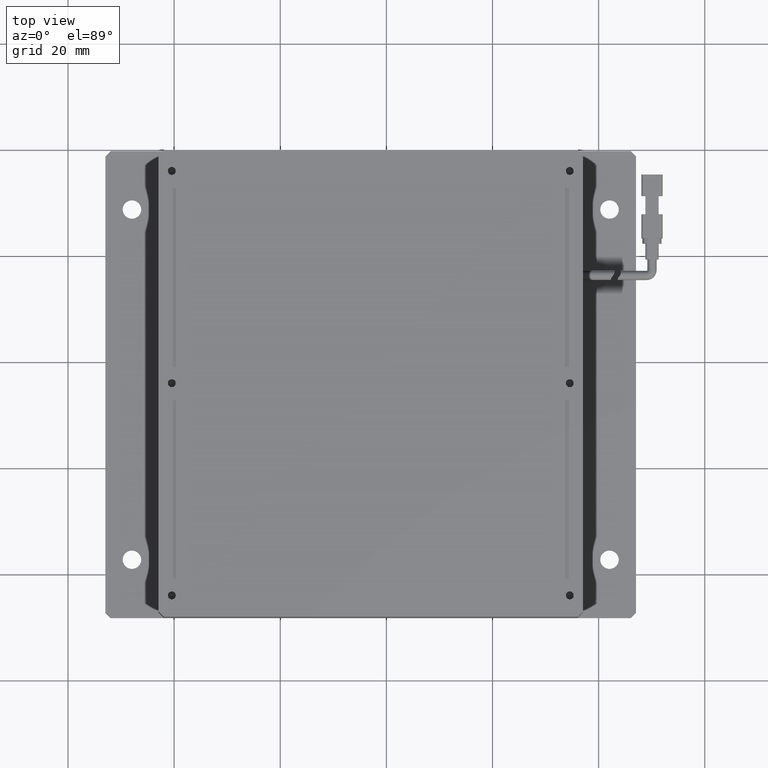
[diagram: clean part render]
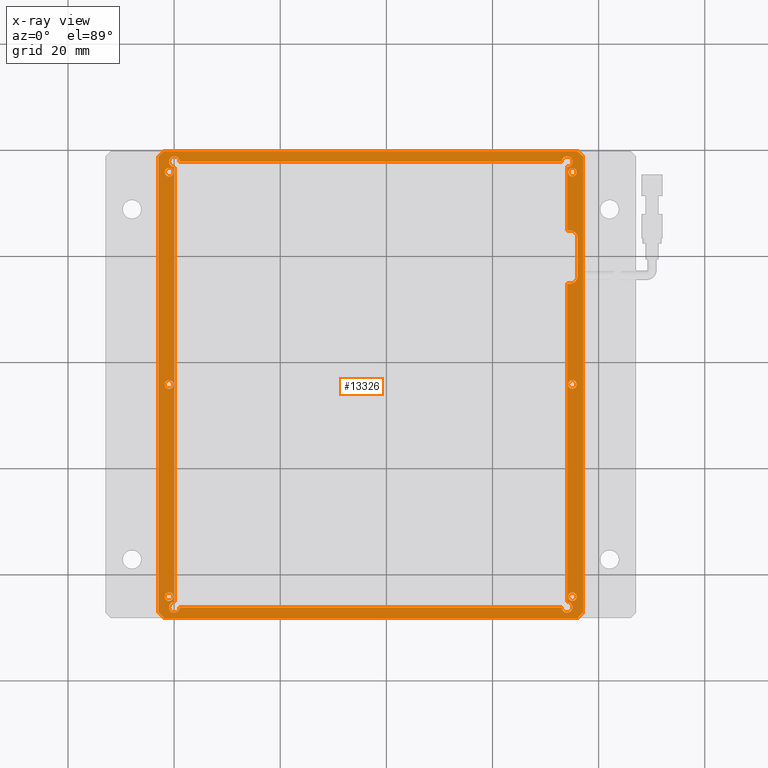
[diagram: x-ray — body ghosted, one internal face saturated and labeled with its STEP entity id]
A machine part, top view, then the same camera in x-ray: the body is ghosted and one INTERNAL B-rep face — a face not visible from any outside direction — is saturated and labeled: STEP entity #13326.
In plain terms, the highlighted planar face has unit normal (0, 0, -1).
Its self-contained STEP definition (entity closure, byte-faithful):
#15 = DIRECTION ( 'NONE',  ( 1.000000000000000000, 0.0000000000000000000, 0.0000000000000000000 ) ) ;
#82 = CARTESIAN_POINT ( 'NONE',  ( 55.85231004200074500, -44.20007636502477800, -4.547577592273199800E-012 ) ) ;
#92 = LINE ( 'NONE', #15072, #3356 ) ;
#102 = ORIENTED_EDGE ( 'NONE', *, *, #7339, .T. ) ;
#191 = DIRECTION ( 'NONE',  ( 0.0000000000000000000, 0.0000000000000000000, 1.000000000000000000 ) ) ;
#221 = CARTESIAN_POINT ( 'NONE',  ( 57.05231004200075500, -47.20007636502479200, -4.547577592273199800E-012 ) ) ;
#239 = CIRCLE ( 'NONE', #10890, 0.9999999999999974500 ) ;
#246 = DIRECTION ( 'NONE',  ( 1.000000000000000000, 0.0000000000000000000, 0.0000000000000000000 ) ) ;
#272 = DIRECTION ( 'NONE',  ( 0.0000000000000000000, 0.0000000000000000000, 1.000000000000000000 ) ) ;
#308 = VERTEX_POINT ( 'NONE', #10811 ) ;
#317 = CARTESIAN_POINT ( 'NONE',  ( 55.85231004200074500, -4.200076365024778500, -4.547577592273199800E-012 ) ) ;
#401 = CARTESIAN_POINT ( 'NONE',  ( -19.94768995799928700, 37.79992363497522900, -4.547577592273199800E-012 ) ) ;
#457 = VERTEX_POINT ( 'NONE', #2588 ) ;
#513 = VECTOR ( 'NONE', #16598, 1000.000000000000000 ) ;
#595 = DIRECTION ( 'NONE',  ( -1.000000000000000000, 0.0000000000000000000, -0.0000000000000000000 ) ) ;
#605 = LINE ( 'NONE', #2261, #4331 ) ;
#650 = VERTEX_POINT ( 'NONE', #12673 ) ;
#719 = CARTESIAN_POINT ( 'NONE',  ( -20.94768995799924800, -44.20007636502477800, -4.547577592273199800E-012 ) ) ;
#918 = CARTESIAN_POINT ( 'NONE',  ( 56.05231004200073400, -48.20007636502477800, -4.550179677487165000E-012 ) ) ;
#971 = EDGE_CURVE ( 'NONE', #9917, #3368, #3453, .T. ) ;
#1082 = EDGE_CURVE ( 'NONE', #10163, #3170, #8573, .T. ) ;
#1135 = CIRCLE ( 'NONE', #11123, 0.9999999999999974500 ) ;
#1140 = EDGE_CURVE ( 'NONE', #3368, #10163, #17310, .T. ) ;
#1344 = CARTESIAN_POINT ( 'NONE',  ( 54.05231004200079100, 24.79992363497521900, -4.547577592273199800E-012 ) ) ;
#1462 = LINE ( 'NONE', #6962, #15626 ) ;
#1781 = DIRECTION ( 'NONE',  ( -1.000000000000000000, 0.0000000000000000000, 0.0000000000000000000 ) ) ;
#1988 = LINE ( 'NONE', #3212, #5277 ) ;
#2025 = ORIENTED_EDGE ( 'NONE', *, *, #2675, .T. ) ;
#2109 = FACE_OUTER_BOUND ( 'NONE', #14252, .T. ) ;
#2110 = DIRECTION ( 'NONE',  ( -1.000000000000000000, 0.0000000000000000000, 0.0000000000000000000 ) ) ;
#2177 = CARTESIAN_POINT ( 'NONE',  ( -22.94768995799924800, 39.79992363497522200, -4.547577592273199800E-012 ) ) ;
#2210 = CIRCLE ( 'NONE', #8724, 0.7999999999999986000 ) ;
#2240 = CARTESIAN_POINT ( 'NONE',  ( 54.05231004200079100, 37.79992363497522900, -4.547577592273199800E-012 ) ) ;
#2261 = CARTESIAN_POINT ( 'NONE',  ( 54.05231004200079100, 39.79992363497522200, -4.547577592273199800E-012 ) ) ;
#2263 = CIRCLE ( 'NONE', #15906, 0.7999999999999986000 ) ;
#2321 = EDGE_CURVE ( 'NONE', #12883, #308, #605, .T. ) ;
#2356 = EDGE_CURVE ( 'NONE', #308, #12710, #16695, .T. ) ;
#2402 = DIRECTION ( 'NONE',  ( 0.0000000000000000000, 0.0000000000000000000, 1.000000000000000000 ) ) ;
#2492 = CARTESIAN_POINT ( 'NONE',  ( 54.05231004200079100, -46.20007636502478500, -4.547577592273199800E-012 ) ) ;
#2514 = CARTESIAN_POINT ( 'NONE',  ( -20.94768995799924800, 35.79992363497524400, -4.547577592273199800E-012 ) ) ;
#2517 = CARTESIAN_POINT ( 'NONE',  ( 55.05231004200074800, 35.79992363497521500, -4.547577592273199800E-012 ) ) ;
#2588 = CARTESIAN_POINT ( 'NONE',  ( 54.55231004200074800, 14.79992363497521200, -4.547577592273199800E-012 ) ) ;
#2595 = CARTESIAN_POINT ( 'NONE',  ( -20.94768995799924800, -4.200076365024778500, -4.547577592273199800E-012 ) ) ;
#2675 = EDGE_CURVE ( 'NONE', #4005, #8441, #8983, .T. ) ;
#2713 = ORIENTED_EDGE ( 'NONE', *, *, #14520, .T. ) ;
#2813 = VERTEX_POINT ( 'NONE', #82 ) ;
#2952 = EDGE_CURVE ( 'NONE', #3170, #457, #3626, .T. ) ;
#3044 = DIRECTION ( 'NONE',  ( -0.7071067811865474600, 0.7071067811865474600, 0.0000000000000000000 ) ) ;
#3068 = EDGE_CURVE ( 'NONE', #3841, #5826, #13861, .T. ) ;
#3106 = DIRECTION ( 'NONE',  ( 1.000000000000000000, -0.0000000000000000000, 0.0000000000000000000 ) ) ;
#3137 = VECTOR ( 'NONE', #14300, 1000.000000000000000 ) ;
#3139 = EDGE_CURVE ( 'NONE', #8537, #12160, #2263, .T. ) ;
#3170 = VERTEX_POINT ( 'NONE', #16638 ) ;
#3212 = CARTESIAN_POINT ( 'NONE',  ( -19.94768995799928700, 39.79992363497522200, -4.547577592273199800E-012 ) ) ;
#3299 = CARTESIAN_POINT ( 'NONE',  ( -19.94768995799928700, 37.79992363497522900, -4.547577592273199800E-012 ) ) ;
#3356 = VECTOR ( 'NONE', #15, 1000.000000000000000 ) ;
#3368 = VERTEX_POINT ( 'NONE', #9639 ) ;
#3453 = LINE ( 'NONE', #17347, #17543 ) ;
#3497 = CARTESIAN_POINT ( 'NONE',  ( 54.55231004200074800, 24.79992363497521900, -4.547577592273199800E-012 ) ) ;
#3594 = DIRECTION ( 'NONE',  ( -1.000000000000000000, 0.0000000000000000000, -0.0000000000000000000 ) ) ;
#3626 = LINE ( 'NONE', #6644, #17724 ) ;
#3685 = CARTESIAN_POINT ( 'NONE',  ( 57.05231004200074100, -47.20007636502480600, -4.548228113576691100E-012 ) ) ;
#3741 = ORIENTED_EDGE ( 'NONE', *, *, #11895, .T. ) ;
#3795 = DIRECTION ( 'NONE',  ( 0.0000000000000000000, 0.0000000000000000000, 1.000000000000000000 ) ) ;
#3810 = EDGE_LOOP ( 'NONE', ( #11406, #15882 ) ) ;
#3841 = VERTEX_POINT ( 'NONE', #16575 ) ;
#3855 = EDGE_LOOP ( 'NONE', ( #6898, #102, #10466, #16496, #17520, #11645, #6748, #13529, #12828, #5091, #12356, #13732, #14135, #12409, #12993, #14922 ) ) ;
#3919 = EDGE_CURVE ( 'NONE', #6253, #6188, #6823, .T. ) ;
#3921 = AXIS2_PLACEMENT_3D ( 'NONE', #2517, #12105, #3953 ) ;
#3951 = DIRECTION ( 'NONE',  ( -1.000000000000000000, 0.0000000000000000000, 0.0000000000000000000 ) ) ;
#3953 = DIRECTION ( 'NONE',  ( -1.000000000000000000, 0.0000000000000000000, 0.0000000000000000000 ) ) ;
#3954 = ORIENTED_EDGE ( 'NONE', *, *, #13965, .T. ) ;
#4005 = VERTEX_POINT ( 'NONE', #9071 ) ;
#4069 = CARTESIAN_POINT ( 'NONE',  ( -19.94768995799928700, -46.20007636502478500, -4.547577592273199800E-012 ) ) ;
#4154 = EDGE_CURVE ( 'NONE', #6188, #4959, #11692, .T. ) ;
#4213 = CARTESIAN_POINT ( 'NONE',  ( -19.94768995799928700, -45.20007636502478500, -4.547577592273199800E-012 ) ) ;
#4331 = VECTOR ( 'NONE', #10502, 1000.000000000000000 ) ;
#4353 = CARTESIAN_POINT ( 'NONE',  ( -18.94768995799928700, 37.79992363497524400, -4.547577592273199800E-012 ) ) ;
#4367 = ORIENTED_EDGE ( 'NONE', *, *, #10113, .T. ) ;
#4438 = DIRECTION ( 'NONE',  ( 0.0000000000000000000, 0.0000000000000000000, 1.000000000000000000 ) ) ;
#4440 = VECTOR ( 'NONE', #13739, 1000.000000000000100 ) ;
#4625 = CARTESIAN_POINT ( 'NONE',  ( 56.05231004200074800, 39.79992363497522200, -4.547577592273199800E-012 ) ) ;
#4705 = DIRECTION ( 'NONE',  ( -1.000000000000000000, 0.0000000000000000000, 0.0000000000000000000 ) ) ;
#4761 = AXIS2_PLACEMENT_3D ( 'NONE', #15087, #6960, #16468 ) ;
#4792 = VERTEX_POINT ( 'NONE', #3685 ) ;
#4819 = CARTESIAN_POINT ( 'NONE',  ( 55.05231004200074800, -44.20007636502477800, -4.547577592273199800E-012 ) ) ;
#4872 = CARTESIAN_POINT ( 'NONE',  ( -20.94768995799924800, 35.79992363497524400, -4.547577592273199800E-012 ) ) ;
#4921 = DIRECTION ( 'NONE',  ( -1.000000000000000000, 0.0000000000000000000, 0.0000000000000000000 ) ) ;
#4934 = VERTEX_POINT ( 'NONE', #3497 ) ;
#4959 = VERTEX_POINT ( 'NONE', #12711 ) ;
#5091 = ORIENTED_EDGE ( 'NONE', *, *, #15696, .T. ) ;
#5095 = ORIENTED_EDGE ( 'NONE', *, *, #3139, .T. ) ;
#5191 = EDGE_CURVE ( 'NONE', #2813, #16497, #6079, .T. ) ;
#5277 = VECTOR ( 'NONE', #12781, 1000.000000000000000 ) ;
#5375 = DIRECTION ( 'NONE',  ( -0.0000000000000000000, -1.000000000000000000, 0.0000000000000000000 ) ) ;
#5410 = FACE_BOUND ( 'NONE', #3855, .T. ) ;
#5467 = DIRECTION ( 'NONE',  ( -1.000000000000000000, 0.0000000000000000000, 0.0000000000000000000 ) ) ;
#5564 = CIRCLE ( 'NONE', #14674, 0.7999999999999986000 ) ;
#5579 = EDGE_CURVE ( 'NONE', #15515, #10497, #13689, .T. ) ;
#5695 = DIRECTION ( 'NONE',  ( 0.7071067811865474600, -0.7071067811865474600, 0.0000000000000000000 ) ) ;
#5826 = VERTEX_POINT ( 'NONE', #6682 ) ;
#5863 = VERTEX_POINT ( 'NONE', #8144 ) ;
#5918 = DIRECTION ( 'NONE',  ( -1.000000000000000000, 0.0000000000000000000, 0.0000000000000000000 ) ) ;
#5976 = EDGE_LOOP ( 'NONE', ( #5095, #12884 ) ) ;
#6079 = CIRCLE ( 'NONE', #17793, 0.7999999999999951600 ) ;
#6139 = CARTESIAN_POINT ( 'NONE',  ( -20.14768995799924800, 35.79992363497524400, -4.547577592273199800E-012 ) ) ;
#6142 = DIRECTION ( 'NONE',  ( 0.0000000000000000000, 0.0000000000000000000, 1.000000000000000000 ) ) ;
#6144 = CIRCLE ( 'NONE', #4761, 0.7999999999999951600 ) ;
#6188 = VERTEX_POINT ( 'NONE', #8849 ) ;
#6250 = DIRECTION ( 'NONE',  ( -1.000000000000000000, 0.0000000000000000000, 0.0000000000000000000 ) ) ;
#6253 = VERTEX_POINT ( 'NONE', #9060 ) ;
#6258 = CIRCLE ( 'NONE', #17760, 0.7999999999999986000 ) ;
#6267 = CARTESIAN_POINT ( 'NONE',  ( -21.74768995799924600, 35.79992363497524400, -4.547577592273199800E-012 ) ) ;
#6404 = DIRECTION ( 'NONE',  ( 0.0000000000000000000, 0.0000000000000000000, 1.000000000000000000 ) ) ;
#6444 = AXIS2_PLACEMENT_3D ( 'NONE', #2492, #7627, #13341 ) ;
#6456 = AXIS2_PLACEMENT_3D ( 'NONE', #2177, #11775, #3594 ) ;
#6606 = VERTEX_POINT ( 'NONE', #4353 ) ;
#6639 = EDGE_CURVE ( 'NONE', #8837, #6253, #11102, .T. ) ;
#6644 = CARTESIAN_POINT ( 'NONE',  ( 56.05231004200074800, 14.79992363497521200, -4.547577592273199800E-012 ) ) ;
#6682 = CARTESIAN_POINT ( 'NONE',  ( 56.05231004200074800, 23.29992363497523300, -4.547577592273199800E-012 ) ) ;
#6706 = ORIENTED_EDGE ( 'NONE', *, *, #16716, .T. ) ;
#6748 = ORIENTED_EDGE ( 'NONE', *, *, #2952, .T. ) ;
#6768 = CIRCLE ( 'NONE', #14128, 0.7999999999999951600 ) ;
#6823 = LINE ( 'NONE', #11220, #3137 ) ;
#6824 = VECTOR ( 'NONE', #5375, 1000.000000000000000 ) ;
#6898 = ORIENTED_EDGE ( 'NONE', *, *, #12003, .T. ) ;
#6960 = DIRECTION ( 'NONE',  ( 0.0000000000000000000, 0.0000000000000000000, 1.000000000000000000 ) ) ;
#6962 = CARTESIAN_POINT ( 'NONE',  ( 56.05231004200076200, 39.79992363497522200, -4.547577592273199800E-012 ) ) ;
#7097 = VERTEX_POINT ( 'NONE', #918 ) ;
#7170 = CARTESIAN_POINT ( 'NONE',  ( -21.94768995799924800, -48.20007636502477800, -4.547577592273199800E-012 ) ) ;
#7227 = LINE ( 'NONE', #8712, #14457 ) ;
#7314 = ORIENTED_EDGE ( 'NONE', *, *, #5191, .T. ) ;
#7339 = EDGE_CURVE ( 'NONE', #8894, #14900, #1135, .T. ) ;
#7482 = VECTOR ( 'NONE', #3044, 1000.000000000000100 ) ;
#7627 = DIRECTION ( 'NONE',  ( 0.0000000000000000000, 0.0000000000000000000, 1.000000000000000000 ) ) ;
#7709 = AXIS2_PLACEMENT_3D ( 'NONE', #3299, #12868, #4705 ) ;
#7726 = CARTESIAN_POINT ( 'NONE',  ( -20.14768995799924800, -44.20007636502477800, -4.547577592273199800E-012 ) ) ;
#7733 = AXIS2_PLACEMENT_3D ( 'NONE', #10628, #2402, #11996 ) ;
#7783 = DIRECTION ( 'NONE',  ( 0.0000000000000000000, 0.0000000000000000000, 1.000000000000000000 ) ) ;
#7944 = ORIENTED_EDGE ( 'NONE', *, *, #5579, .T. ) ;
#8020 = DIRECTION ( 'NONE',  ( 0.0000000000000000000, 1.000000000000000000, 0.0000000000000000000 ) ) ;
#8096 = ORIENTED_EDGE ( 'NONE', *, *, #16797, .T. ) ;
#8109 = EDGE_CURVE ( 'NONE', #650, #14914, #8784, .T. ) ;
#8144 = CARTESIAN_POINT ( 'NONE',  ( -20.94768995799928700, 37.79992363497522900, -4.547577592273199800E-012 ) ) ;
#8429 = CARTESIAN_POINT ( 'NONE',  ( -22.94768995799924800, 37.79992363497522900, -4.547577592273199800E-012 ) ) ;
#8439 = CARTESIAN_POINT ( 'NONE',  ( -19.94768995799928700, -46.20007636502478500, -4.547577592273199800E-012 ) ) ;
#8441 = VERTEX_POINT ( 'NONE', #317 ) ;
#8497 = DIRECTION ( 'NONE',  ( 0.0000000000000000000, 0.0000000000000000000, 1.000000000000000000 ) ) ;
#8537 = VERTEX_POINT ( 'NONE', #16982 ) ;
#8573 = LINE ( 'NONE', #15767, #8997 ) ;
#8712 = CARTESIAN_POINT ( 'NONE',  ( -22.94768995799924800, -48.20007636502477800, -4.547577592273199800E-012 ) ) ;
#8724 = AXIS2_PLACEMENT_3D ( 'NONE', #2514, #12102, #3951 ) ;
#8784 = CIRCLE ( 'NONE', #3921, 0.7999999999999951600 ) ;
#8837 = VERTEX_POINT ( 'NONE', #10962 ) ;
#8849 = CARTESIAN_POINT ( 'NONE',  ( -22.94768995799925200, 38.79992363497521500, -4.548228113576691100E-012 ) ) ;
#8851 = CARTESIAN_POINT ( 'NONE',  ( -19.94768995799928700, 36.79992363497522900, -4.547577592273199800E-012 ) ) ;
#8893 = AXIS2_PLACEMENT_3D ( 'NONE', #16668, #8497, #246 ) ;
#8894 = VERTEX_POINT ( 'NONE', #4213 ) ;
#8900 = DIRECTION ( 'NONE',  ( -1.000000000000000000, 0.0000000000000000000, 0.0000000000000000000 ) ) ;
#8983 = CIRCLE ( 'NONE', #10525, 0.7999999999999951600 ) ;
#8997 = VECTOR ( 'NONE', #12623, 1000.000000000000000 ) ;
#9005 = FACE_BOUND ( 'NONE', #3810, .T. ) ;
#9047 = EDGE_CURVE ( 'NONE', #9799, #10286, #5564, .T. ) ;
#9060 = CARTESIAN_POINT ( 'NONE',  ( -22.94768995799924500, -47.20007636502478500, -4.550179677487165000E-012 ) ) ;
#9071 = CARTESIAN_POINT ( 'NONE',  ( 54.25231004200075800, -4.200076365024778500, -4.547577592273199800E-012 ) ) ;
#9104 = DIRECTION ( 'NONE',  ( -1.000000000000000000, 0.0000000000000000000, 0.0000000000000000000 ) ) ;
#9192 = CARTESIAN_POINT ( 'NONE',  ( -20.94768995799924800, -44.20007636502477800, -4.547577592273199800E-012 ) ) ;
#9486 = EDGE_LOOP ( 'NONE', ( #9739, #3954 ) ) ;
#9639 = CARTESIAN_POINT ( 'NONE',  ( 53.05231004200079100, -46.20007636502479200, -4.547577592273199800E-012 ) ) ;
#9739 = ORIENTED_EDGE ( 'NONE', *, *, #9047, .T. ) ;
#9774 = CIRCLE ( 'NONE', #13641, 1.500000000000001300 ) ;
#9799 = VERTEX_POINT ( 'NONE', #6267 ) ;
#9817 = DIRECTION ( 'NONE',  ( -1.000000000000000000, 0.0000000000000000000, 0.0000000000000000000 ) ) ;
#9899 = CARTESIAN_POINT ( 'NONE',  ( 55.05231004200074800, -4.200076365024778500, -4.547577592273199800E-012 ) ) ;
#9917 = VERTEX_POINT ( 'NONE', #17500 ) ;
#10018 = DIRECTION ( 'NONE',  ( 0.0000000000000000000, 0.0000000000000000000, 1.000000000000000000 ) ) ;
#10040 = CARTESIAN_POINT ( 'NONE',  ( 54.05231004200079100, -45.20007636502478500, -4.547577592273199800E-012 ) ) ;
#10084 = CARTESIAN_POINT ( 'NONE',  ( 54.25231004200075800, -44.20007636502477800, -4.547577592273199800E-012 ) ) ;
#10113 = EDGE_CURVE ( 'NONE', #16497, #2813, #6768, .T. ) ;
#10138 = LINE ( 'NONE', #221, #13335 ) ;
#10163 = VERTEX_POINT ( 'NONE', #10040 ) ;
#10231 = VERTEX_POINT ( 'NONE', #8851 ) ;
#10237 = VECTOR ( 'NONE', #8020, 1000.000000000000000 ) ;
#10255 = EDGE_CURVE ( 'NONE', #4934, #12883, #11642, .T. ) ;
#10286 = VERTEX_POINT ( 'NONE', #6139 ) ;
#10350 = DIRECTION ( 'NONE',  ( 0.0000000000000000000, 0.0000000000000000000, 1.000000000000000000 ) ) ;
#10466 = ORIENTED_EDGE ( 'NONE', *, *, #17389, .T. ) ;
#10497 = VERTEX_POINT ( 'NONE', #12060 ) ;
#10502 = DIRECTION ( 'NONE',  ( 0.0000000000000000000, 1.000000000000000000, 0.0000000000000000000 ) ) ;
#10525 = AXIS2_PLACEMENT_3D ( 'NONE', #9899, #272, #5918 ) ;
#10628 = CARTESIAN_POINT ( 'NONE',  ( 55.05231004200074800, -4.200076365024778500, -4.547577592273199800E-012 ) ) ;
#10811 = CARTESIAN_POINT ( 'NONE',  ( 54.05231004200079100, 36.79992363497522900, -4.547577592273199800E-012 ) ) ;
#10858 = DIRECTION ( 'NONE',  ( -1.000000000000000000, 0.0000000000000000000, 0.0000000000000000000 ) ) ;
#10890 = AXIS2_PLACEMENT_3D ( 'NONE', #401, #10018, #1781 ) ;
#10962 = CARTESIAN_POINT ( 'NONE',  ( -21.94768995799925200, -48.20007636502477800, -4.548228113576691100E-012 ) ) ;
#11080 = EDGE_CURVE ( 'NONE', #10497, #15515, #17072, .T. ) ;
#11102 = LINE ( 'NONE', #7170, #7482 ) ;
#11123 = AXIS2_PLACEMENT_3D ( 'NONE', #8439, #191, #9817 ) ;
#11200 = AXIS2_PLACEMENT_3D ( 'NONE', #11965, #3795, #13340 ) ;
#11220 = CARTESIAN_POINT ( 'NONE',  ( -22.94768995799924800, -48.20007636502477800, -4.547577592273199800E-012 ) ) ;
#11293 = AXIS2_PLACEMENT_3D ( 'NONE', #2595, #6404, #8900 ) ;
#11376 = CIRCLE ( 'NONE', #16826, 0.9999999999999974500 ) ;
#11406 = ORIENTED_EDGE ( 'NONE', *, *, #14062, .T. ) ;
#11598 = CARTESIAN_POINT ( 'NONE',  ( 57.05231004200075500, 38.79992363497521500, -4.550179677487165000E-012 ) ) ;
#11610 = EDGE_LOOP ( 'NONE', ( #4367, #7314 ) ) ;
#11642 = LINE ( 'NONE', #17015, #15697 ) ;
#11645 = ORIENTED_EDGE ( 'NONE', *, *, #1082, .T. ) ;
#11692 = LINE ( 'NONE', #11829, #4440 ) ;
#11738 = EDGE_CURVE ( 'NONE', #12710, #6606, #14668, .T. ) ;
#11739 = VERTEX_POINT ( 'NONE', #16253 ) ;
#11775 = DIRECTION ( 'NONE',  ( 0.0000000000000000000, 0.0000000000000000000, -1.000000000000000000 ) ) ;
#11796 = CARTESIAN_POINT ( 'NONE',  ( 53.05231004200079100, 37.79992363497522900, -4.547577592273199800E-012 ) ) ;
#11829 = CARTESIAN_POINT ( 'NONE',  ( -22.94768995799925900, 38.79992363497520100, -4.547577592273199800E-012 ) ) ;
#11895 = EDGE_CURVE ( 'NONE', #7097, #8837, #7227, .T. ) ;
#11965 = CARTESIAN_POINT ( 'NONE',  ( -20.94768995799924800, -4.200076365024778500, -4.547577592273199800E-012 ) ) ;
#11996 = DIRECTION ( 'NONE',  ( -1.000000000000000000, 0.0000000000000000000, 0.0000000000000000000 ) ) ;
#12003 = EDGE_CURVE ( 'NONE', #10231, #8894, #1988, .T. ) ;
#12060 = CARTESIAN_POINT ( 'NONE',  ( -21.74768995799924600, -4.200076365024778500, -4.547577592273199800E-012 ) ) ;
#12102 = DIRECTION ( 'NONE',  ( 0.0000000000000000000, 0.0000000000000000000, 1.000000000000000000 ) ) ;
#12105 = DIRECTION ( 'NONE',  ( 0.0000000000000000000, 0.0000000000000000000, 1.000000000000000000 ) ) ;
#12150 = CARTESIAN_POINT ( 'NONE',  ( 57.05231004200075500, -48.20007636502477800, -4.547577592273199800E-012 ) ) ;
#12160 = VERTEX_POINT ( 'NONE', #7726 ) ;
#12184 = ORIENTED_EDGE ( 'NONE', *, *, #3919, .T. ) ;
#12356 = ORIENTED_EDGE ( 'NONE', *, *, #10255, .T. ) ;
#12403 = DIRECTION ( 'NONE',  ( 0.0000000000000000000, 0.0000000000000000000, 1.000000000000000000 ) ) ;
#12409 = ORIENTED_EDGE ( 'NONE', *, *, #11738, .T. ) ;
#12504 = EDGE_CURVE ( 'NONE', #4792, #7097, #10138, .T. ) ;
#12564 = EDGE_CURVE ( 'NONE', #5863, #10231, #239, .T. ) ;
#12615 = CARTESIAN_POINT ( 'NONE',  ( 55.05231004200074800, -44.20007636502477800, -4.547577592273199800E-012 ) ) ;
#12623 = DIRECTION ( 'NONE',  ( 0.0000000000000000000, 1.000000000000000000, 0.0000000000000000000 ) ) ;
#12645 = FACE_BOUND ( 'NONE', #13844, .T. ) ;
#12673 = CARTESIAN_POINT ( 'NONE',  ( 55.85231004200074500, 35.79992363497521500, -4.547577592273199800E-012 ) ) ;
#12684 = ORIENTED_EDGE ( 'NONE', *, *, #17504, .T. ) ;
#12710 = VERTEX_POINT ( 'NONE', #11796 ) ;
#12711 = CARTESIAN_POINT ( 'NONE',  ( -21.94768995799926300, 39.79992363497522200, -4.550179677487165000E-012 ) ) ;
#12732 = DIRECTION ( 'NONE',  ( -1.000000000000000000, -0.0000000000000000000, 0.0000000000000000000 ) ) ;
#12781 = DIRECTION ( 'NONE',  ( -0.0000000000000000000, -1.000000000000000000, -0.0000000000000000000 ) ) ;
#12828 = ORIENTED_EDGE ( 'NONE', *, *, #3068, .T. ) ;
#12868 = DIRECTION ( 'NONE',  ( 0.0000000000000000000, 0.0000000000000000000, 1.000000000000000000 ) ) ;
#12883 = VERTEX_POINT ( 'NONE', #1344 ) ;
#12884 = ORIENTED_EDGE ( 'NONE', *, *, #13279, .T. ) ;
#12947 = CARTESIAN_POINT ( 'NONE',  ( 54.25231004200075800, 35.79992363497521500, -4.547577592273199800E-012 ) ) ;
#12993 = ORIENTED_EDGE ( 'NONE', *, *, #13159, .T. ) ;
#13077 = FACE_BOUND ( 'NONE', #5976, .T. ) ;
#13079 = CIRCLE ( 'NONE', #8893, 1.500000000000001300 ) ;
#13159 = EDGE_CURVE ( 'NONE', #6606, #5863, #16500, .T. ) ;
#13279 = EDGE_CURVE ( 'NONE', #12160, #8537, #6258, .T. ) ;
#13326 = ADVANCED_FACE ( 'NONE', ( #2109, #13077, #13500, #16699, #16282, #12645, #9005, #5410 ), #14471, .T. ) ;
#13335 = VECTOR ( 'NONE', #15266, 1000.000000000000000 ) ;
#13340 = DIRECTION ( 'NONE',  ( -1.000000000000000000, 0.0000000000000000000, 0.0000000000000000000 ) ) ;
#13341 = DIRECTION ( 'NONE',  ( -1.000000000000000000, -6.938893903907222100E-015, 0.0000000000000000000 ) ) ;
#13500 = FACE_BOUND ( 'NONE', #14511, .T. ) ;
#13529 = ORIENTED_EDGE ( 'NONE', *, *, #13875, .T. ) ;
#13599 = DIRECTION ( 'NONE',  ( 1.000000000000000000, 0.0000000000000000000, 0.0000000000000000000 ) ) ;
#13604 = DIRECTION ( 'NONE',  ( 0.0000000000000000000, 0.0000000000000000000, 1.000000000000000000 ) ) ;
#13641 = AXIS2_PLACEMENT_3D ( 'NONE', #15929, #7783, #17290 ) ;
#13689 = CIRCLE ( 'NONE', #11293, 0.7999999999999986000 ) ;
#13732 = ORIENTED_EDGE ( 'NONE', *, *, #2321, .T. ) ;
#13739 = DIRECTION ( 'NONE',  ( 0.7071067811865408000, 0.7071067811865541200, 0.0000000000000000000 ) ) ;
#13844 = EDGE_LOOP ( 'NONE', ( #2025, #2713 ) ) ;
#13861 = LINE ( 'NONE', #4625, #10237 ) ;
#13875 = EDGE_CURVE ( 'NONE', #457, #3841, #9774, .T. ) ;
#13942 = AXIS2_PLACEMENT_3D ( 'NONE', #2240, #17260, #9104 ) ;
#13965 = EDGE_CURVE ( 'NONE', #10286, #9799, #2210, .T. ) ;
#13979 = DIRECTION ( 'NONE',  ( -1.000000000000000000, 0.0000000000000000000, 0.0000000000000000000 ) ) ;
#14062 = EDGE_CURVE ( 'NONE', #14914, #650, #6144, .T. ) ;
#14128 = AXIS2_PLACEMENT_3D ( 'NONE', #12615, #4438, #13979 ) ;
#14135 = ORIENTED_EDGE ( 'NONE', *, *, #2356, .T. ) ;
#14252 = EDGE_LOOP ( 'NONE', ( #3741, #15845, #12184, #16399, #8096, #12684, #6706, #15391 ) ) ;
#14300 = DIRECTION ( 'NONE',  ( -0.0000000000000000000, 1.000000000000000000, 0.0000000000000000000 ) ) ;
#14414 = DIRECTION ( 'NONE',  ( 0.0000000000000000000, 0.0000000000000000000, 1.000000000000000000 ) ) ;
#14457 = VECTOR ( 'NONE', #12732, 1000.000000000000000 ) ;
#14471 = PLANE ( 'NONE',  #6456 ) ;
#14488 = LINE ( 'NONE', #12150, #6824 ) ;
#14511 = EDGE_LOOP ( 'NONE', ( #15774, #7944 ) ) ;
#14520 = EDGE_CURVE ( 'NONE', #8441, #4005, #16342, .T. ) ;
#14668 = LINE ( 'NONE', #8429, #513 ) ;
#14674 = AXIS2_PLACEMENT_3D ( 'NONE', #4872, #14414, #6250 ) ;
#14883 = CARTESIAN_POINT ( 'NONE',  ( -20.14768995799924800, -4.200076365024778500, -4.547577592273199800E-012 ) ) ;
#14900 = VERTEX_POINT ( 'NONE', #17048 ) ;
#14914 = VERTEX_POINT ( 'NONE', #12947 ) ;
#14922 = ORIENTED_EDGE ( 'NONE', *, *, #12564, .T. ) ;
#15072 = CARTESIAN_POINT ( 'NONE',  ( -22.94768995799924800, 39.79992363497522200, -4.547577592273199800E-012 ) ) ;
#15087 = CARTESIAN_POINT ( 'NONE',  ( 55.05231004200074800, 35.79992363497521500, -4.547577592273199800E-012 ) ) ;
#15266 = DIRECTION ( 'NONE',  ( -0.7071067811865524600, -0.7071067811865426900, 0.0000000000000000000 ) ) ;
#15391 = ORIENTED_EDGE ( 'NONE', *, *, #12504, .T. ) ;
#15515 = VERTEX_POINT ( 'NONE', #14883 ) ;
#15626 = VECTOR ( 'NONE', #5695, 1000.000000000000100 ) ;
#15696 = EDGE_CURVE ( 'NONE', #5826, #4934, #13079, .T. ) ;
#15697 = VECTOR ( 'NONE', #595, 1000.000000000000000 ) ;
#15767 = CARTESIAN_POINT ( 'NONE',  ( 54.05231004200079100, 39.79992363497522200, -4.547577592273199800E-012 ) ) ;
#15774 = ORIENTED_EDGE ( 'NONE', *, *, #11080, .T. ) ;
#15845 = ORIENTED_EDGE ( 'NONE', *, *, #6639, .T. ) ;
#15882 = ORIENTED_EDGE ( 'NONE', *, *, #8109, .T. ) ;
#15906 = AXIS2_PLACEMENT_3D ( 'NONE', #9192, #12403, #10858 ) ;
#15929 = CARTESIAN_POINT ( 'NONE',  ( 54.55231004200074800, 16.29992363497521200, -4.547577592273199800E-012 ) ) ;
#16253 = CARTESIAN_POINT ( 'NONE',  ( 56.05231004200076200, 39.79992363497522200, -4.548878634880182400E-012 ) ) ;
#16282 = FACE_BOUND ( 'NONE', #11610, .T. ) ;
#16342 = CIRCLE ( 'NONE', #7733, 0.7999999999999951600 ) ;
#16399 = ORIENTED_EDGE ( 'NONE', *, *, #4154, .T. ) ;
#16468 = DIRECTION ( 'NONE',  ( -1.000000000000000000, 0.0000000000000000000, 0.0000000000000000000 ) ) ;
#16496 = ORIENTED_EDGE ( 'NONE', *, *, #971, .T. ) ;
#16497 = VERTEX_POINT ( 'NONE', #10084 ) ;
#16500 = CIRCLE ( 'NONE', #7709, 0.9999999999999974500 ) ;
#16575 = CARTESIAN_POINT ( 'NONE',  ( 56.05231004200074800, 16.29992363497521200, -4.547577592273199800E-012 ) ) ;
#16598 = DIRECTION ( 'NONE',  ( -1.000000000000000000, 0.0000000000000000000, -0.0000000000000000000 ) ) ;
#16638 = CARTESIAN_POINT ( 'NONE',  ( 54.05231004200079100, 14.79992363497521200, -4.547577592273199800E-012 ) ) ;
#16668 = CARTESIAN_POINT ( 'NONE',  ( 54.55231004200074800, 23.29992363497523300, -4.547577592273199800E-012 ) ) ;
#16695 = CIRCLE ( 'NONE', #13942, 1.000000000000000900 ) ;
#16699 = FACE_BOUND ( 'NONE', #9486, .T. ) ;
#16716 = EDGE_CURVE ( 'NONE', #17154, #4792, #14488, .T. ) ;
#16797 = EDGE_CURVE ( 'NONE', #4959, #11739, #92, .T. ) ;
#16826 = AXIS2_PLACEMENT_3D ( 'NONE', #4069, #13604, #5467 ) ;
#16982 = CARTESIAN_POINT ( 'NONE',  ( -21.74768995799924600, -44.20007636502477800, -4.547577592273199800E-012 ) ) ;
#17015 = CARTESIAN_POINT ( 'NONE',  ( 56.05231004200074800, 24.79992363497521900, -4.547577592273199800E-012 ) ) ;
#17048 = CARTESIAN_POINT ( 'NONE',  ( -20.94768995799928700, -46.20007636502478500, -4.547577592273199800E-012 ) ) ;
#17072 = CIRCLE ( 'NONE', #11200, 0.7999999999999986000 ) ;
#17154 = VERTEX_POINT ( 'NONE', #11598 ) ;
#17260 = DIRECTION ( 'NONE',  ( 0.0000000000000000000, 0.0000000000000000000, 1.000000000000000000 ) ) ;
#17290 = DIRECTION ( 'NONE',  ( 1.000000000000000000, 0.0000000000000000000, 0.0000000000000000000 ) ) ;
#17310 = CIRCLE ( 'NONE', #6444, 1.000000000000000900 ) ;
#17347 = CARTESIAN_POINT ( 'NONE',  ( -22.94768995799924800, -46.20007636502479900, -4.547577592273199800E-012 ) ) ;
#17389 = EDGE_CURVE ( 'NONE', #14900, #9917, #11376, .T. ) ;
#17500 = CARTESIAN_POINT ( 'NONE',  ( -18.94768995799929100, -46.20007636502479900, -4.547577592273199800E-012 ) ) ;
#17504 = EDGE_CURVE ( 'NONE', #11739, #17154, #1462, .T. ) ;
#17520 = ORIENTED_EDGE ( 'NONE', *, *, #1140, .T. ) ;
#17543 = VECTOR ( 'NONE', #3106, 1000.000000000000000 ) ;
#17724 = VECTOR ( 'NONE', #13599, 1000.000000000000000 ) ;
#17760 = AXIS2_PLACEMENT_3D ( 'NONE', #719, #10350, #2110 ) ;
#17793 = AXIS2_PLACEMENT_3D ( 'NONE', #4819, #6142, #4921 ) ;